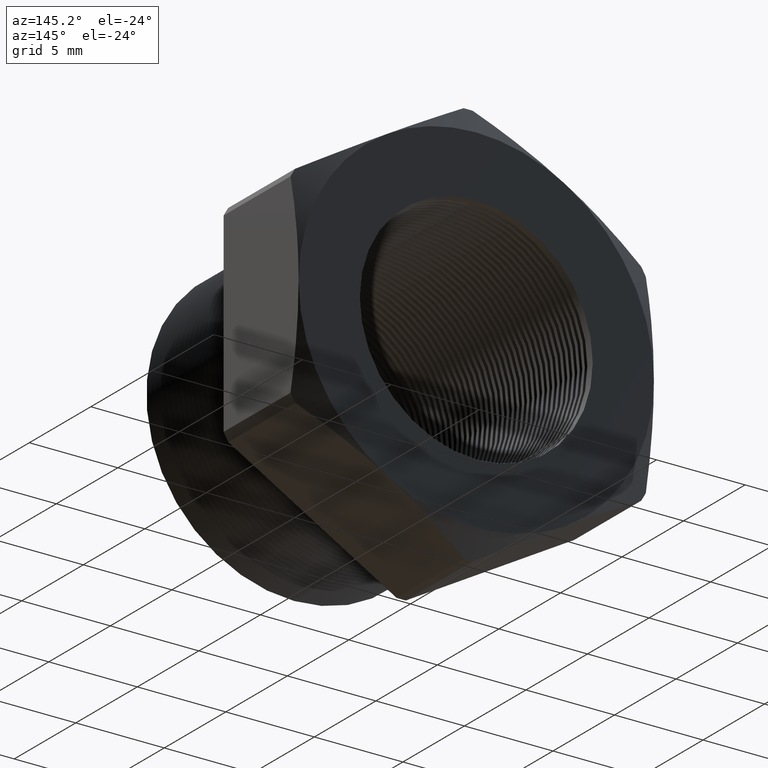
[diagram: clean part render]
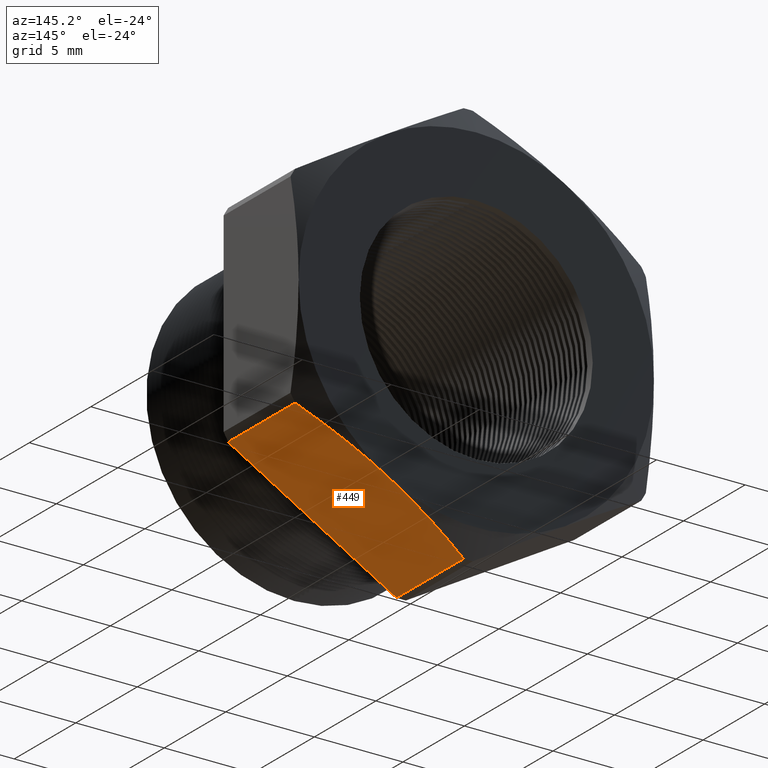
[diagram: same view with one face highlighted and labeled with its STEP entity id]
A machine part, auxiliary view. The second image highlights one B-rep face of the part: STEP entity #449.
In plain terms, the highlighted planar face has unit normal (0.5, 0, -0.866).
Its self-contained STEP definition (entity closure, byte-faithful):
#316 = VERTEX_POINT ( 'NONE', #1838 ) ;
#353 = VERTEX_POINT ( 'NONE', #1890 ) ;
#355 = EDGE_CURVE ( 'NONE', #353, #356, #1889, .T. ) ;
#356 = VERTEX_POINT ( 'NONE', #1885 ) ;
#369 = VERTEX_POINT ( 'NONE', #1921 ) ;
#370 = VERTEX_POINT ( 'NONE', #1920 ) ;
#449 = ADVANCED_FACE ( 'NONE', ( #2058 ), #2057, .T. ) ;
#450 = EDGE_LOOP ( 'NONE', ( #451, #452, #454, #6226, #510 ) ) ;
#451 = ORIENTED_EDGE ( 'NONE', *, *, #355, .F. ) ;
#452 = ORIENTED_EDGE ( 'NONE', *, *, #453, .T. ) ;
#453 = EDGE_CURVE ( 'NONE', #353, #316, #2100, .T. ) ;
#454 = ORIENTED_EDGE ( 'NONE', *, *, #455, .T. ) ;
#455 = EDGE_CURVE ( 'NONE', #316, #370, #2093, .T. ) ;
#510 = ORIENTED_EDGE ( 'NONE', *, *, #511, .F. ) ;
#511 = EDGE_CURVE ( 'NONE', #356, #369, #2256, .T. ) ;
#1838 = CARTESIAN_POINT ( 'NONE',  ( 0.1975000000000000400, 0.4075548905829479200, -0.3420800344948534700 ) ) ;
#1885 = CARTESIAN_POINT ( 'NONE',  ( 0.01026000026703720500, 0.1675548905829479500, -0.4501830987437447900 ) ) ;
#1886 = DIRECTION ( 'NONE',  ( -0.0000000000000000000, -1.000000000000000000, -0.0000000000000000000 ) ) ;
#1887 = VECTOR ( 'NONE', #1886, 39.37007874015748100 ) ;
#1888 = CARTESIAN_POINT ( 'NONE',  ( 0.01026000026703699000, 0.0000000000000000000, -0.4501830987437449000 ) ) ;
#1889 = LINE ( 'NONE', #1888, #1887 ) ;
#1890 = CARTESIAN_POINT ( 'NONE',  ( 0.01026000026703703000, 0.3817680770869766300, -0.4501830987437449600 ) ) ;
#1920 = CARTESIAN_POINT ( 'NONE',  ( 0.3847399997329629100, 0.3817680770869766300, -0.2339769702459618100 ) ) ;
#1921 = CARTESIAN_POINT ( 'NONE',  ( 0.3847399997329628000, 0.1675548905829479500, -0.2339769702459620100 ) ) ;
#2057 = PLANE ( 'NONE',  #2059 ) ;
#2058 = FACE_OUTER_BOUND ( 'NONE', #450, .T. ) ;
#2059 = AXIS2_PLACEMENT_3D ( 'NONE', #2103, #2102, #2101 ) ;
#2087 = CARTESIAN_POINT ( 'NONE',  ( 0.3847399997329629100, 0.3817680770869766300, -0.2339769702459618100 ) ) ;
#2088 = CARTESIAN_POINT ( 'NONE',  ( 0.3538644116588921000, 0.3897502881590466700, -0.2518029993319146300 ) ) ;
#2089 = CARTESIAN_POINT ( 'NONE',  ( 0.3227431943461728800, 0.3962764420413620300, -0.2697708425249217800 ) ) ;
#2090 = CARTESIAN_POINT ( 'NONE',  ( 0.2599588776186196900, 0.4052207272773963300, -0.3060193846884615200 ) ) ;
#2091 = CARTESIAN_POINT ( 'NONE',  ( 0.2286719793528691200, 0.4075548905829478600, -0.3240828838243009500 ) ) ;
#2092 = CARTESIAN_POINT ( 'NONE',  ( 0.1975000000000000400, 0.4075548905829479200, -0.3420800344948534700 ) ) ;
#2093 = B_SPLINE_CURVE_WITH_KNOTS ( 'NONE', 3,
 ( #2092, #2091, #2090, #2089, #2088, #2087 ),
 .UNSPECIFIED., .F., .F.,
 ( 4, 2, 4 ),
 ( 0.005520192186429568100, 0.008258536476824111800, 0.01099688076721865500 ),
 .UNSPECIFIED. ) ;
#2094 = CARTESIAN_POINT ( 'NONE',  ( 0.1975000000000000400, 0.4075548905829479200, -0.3420800344948534700 ) ) ;
#2095 = CARTESIAN_POINT ( 'NONE',  ( 0.1660817377447930100, 0.4075548905829479200, -0.3602193766653674100 ) ) ;
#2096 = CARTESIAN_POINT ( 'NONE',  ( 0.1347800776656141200, 0.4051865378565922500, -0.3782913985381633500 ) ) ;
#2097 = CARTESIAN_POINT ( 'NONE',  ( 0.07238150130182599600, 0.3962912005447678500, -0.4143172333988461300 ) ) ;
#2098 = CARTESIAN_POINT ( 'NONE',  ( 0.04128338948296776700, 0.3897884989263422100, -0.4322717366287528500 ) ) ;
#2099 = CARTESIAN_POINT ( 'NONE',  ( 0.01026000026703703000, 0.3817680770869766300, -0.4501830987437449600 ) ) ;
#2100 = B_SPLINE_CURVE_WITH_KNOTS ( 'NONE', 3,
 ( #2099, #2098, #2097, #2096, #2095, #2094 ),
 .UNSPECIFIED., .F., .F.,
 ( 4, 2, 4 ),
 ( 2.335025902589980200E-007, 0.002760212844509913600, 0.005520192186429568100 ),
 .UNSPECIFIED. ) ;
#2101 = DIRECTION ( 'NONE',  ( -0.8660254037844388200, 0.0000000000000000000, -0.4999999999999998300 ) ) ;
#2102 = DIRECTION ( 'NONE',  ( 0.4999999999999998300, 0.0000000000000000000, -0.8660254037844388200 ) ) ;
#2103 = CARTESIAN_POINT ( 'NONE',  ( 1.446412442642387900E-016, 0.4075548905829479700, -0.4561067126598043500 ) ) ;
#2253 = DIRECTION ( 'NONE',  ( 0.8660254037844388200, 0.0000000000000000000, 0.4999999999999998300 ) ) ;
#2254 = VECTOR ( 'NONE', #2253, 39.37007874015748100 ) ;
#2255 = CARTESIAN_POINT ( 'NONE',  ( 0.4337499999999999700, 0.1675548905829479500, -0.2056810333988043400 ) ) ;
#2256 = LINE ( 'NONE', #2255, #2254 ) ;
#4737 = DIRECTION ( 'NONE',  ( 0.0000000000000000000, 1.000000000000000000, 0.0000000000000000000 ) ) ;
#4738 = VECTOR ( 'NONE', #4737, 39.37007874015748100 ) ;
#4739 = CARTESIAN_POINT ( 'NONE',  ( 0.3847399997329629100, 0.0000000000000000000, -0.2339769702459618100 ) ) ;
#4740 = LINE ( 'NONE', #4739, #4738 ) ;
#6222 = EDGE_CURVE ( 'NONE', #369, #370, #4740, .T. ) ;
#6226 = ORIENTED_EDGE ( 'NONE', *, *, #6222, .F. ) ;